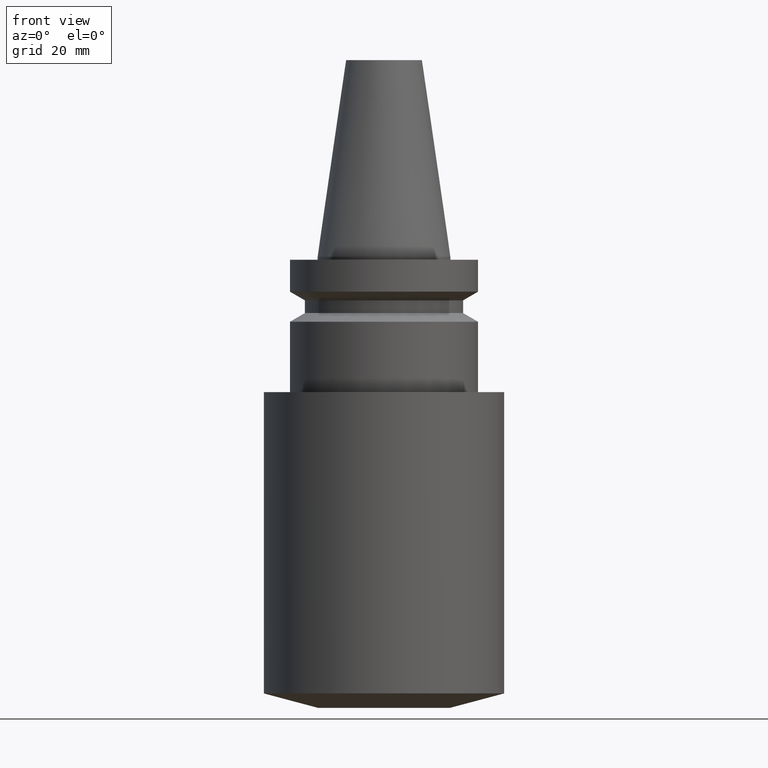
[diagram: clean part render]
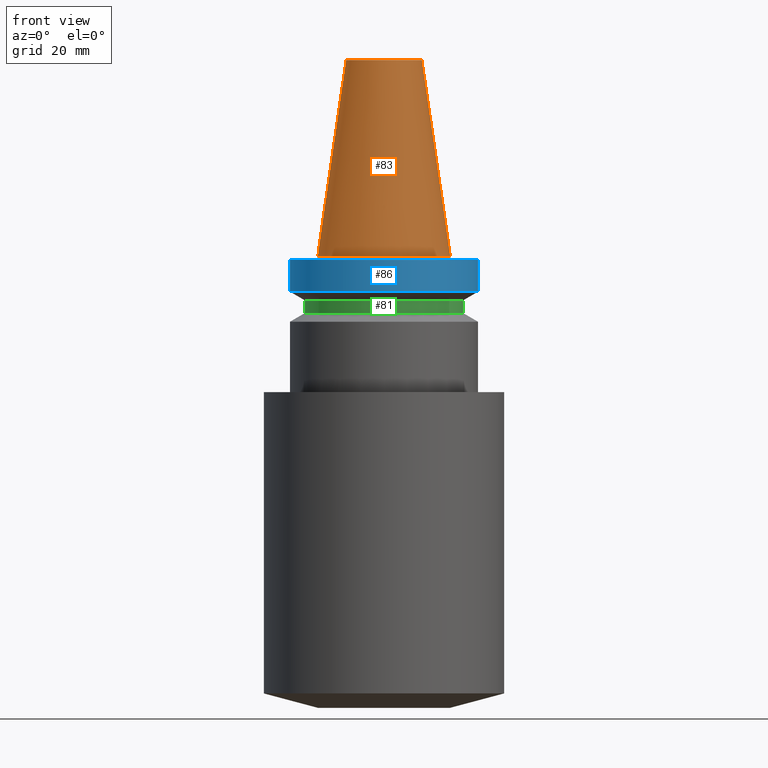
[diagram: same view with three faces highlighted in distinct colors, each labeled with its STEP entity id]
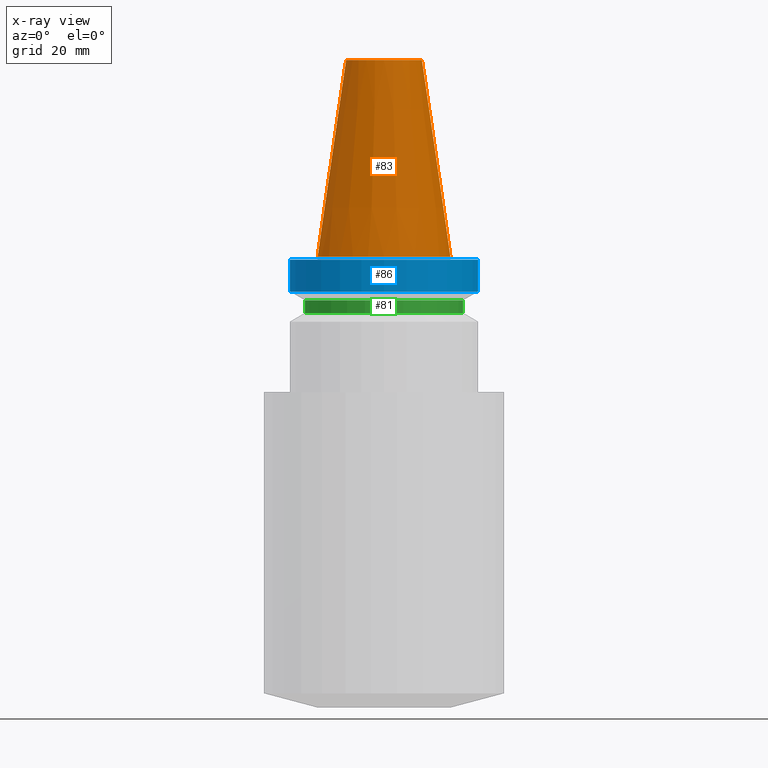
[diagram: x-ray of the same camera — body ghosted, the three highlighted faces saturated]
A machine part, front view with three faces highlighted in distinct colors.
The next image is the same camera in x-ray (body ghosted, the three faces saturated) — at least one of them is partly hidden behind the body in this view.
Their STEP definitions:

[orange] entity #83 — the highlighted conical surface has half-angle 8.297 deg.
#83=ADVANCED_FACE('',(#111,#112),#113,.T.);
#111=FACE_BOUND('',#148,.T.);
#112=FACE_BOUND('',#149,.T.);
#113=CONICAL_SURFACE('',#150,17.4562500022463,0.144812498171676);
#148=EDGE_LOOP('',(#201));
#149=EDGE_LOOP('',(#202));
#150=AXIS2_PLACEMENT_3D('',#203,#204,#205);
#201=ORIENTED_EDGE('',*,*,#234,.F.);
#202=ORIENTED_EDGE('',*,*,#233,.T.);
#203=CARTESIAN_POINT('',(-2.00229751660592E-015,-4.00459503321184E-015,32.7));
#204=DIRECTION('',(6.12323399573677E-017,1.22464679914735E-016,-1.0));
#205=DIRECTION('',(-1.23259516440783E-032,1.0,1.22464679914735E-016));
#233=EDGE_CURVE('',#252,#252,#253,.T.);
#234=EDGE_CURVE('',#254,#254,#255,.T.);
#252=VERTEX_POINT('',#276);
#253=CIRCLE('',#277,12.6875000044926);
#254=VERTEX_POINT('',#278);
#255=CIRCLE('',#279,22.225);
#276=CARTESIAN_POINT('',(-4.00459503321185E-015,12.6875000044926,65.4));
#277=AXIS2_PLACEMENT_3D('',#307,#308,#309);
#278=CARTESIAN_POINT('',(-2.7394427528964E-031,22.225,2.72177751110499E-015));
#279=AXIS2_PLACEMENT_3D('',#310,#311,#312);
#307=CARTESIAN_POINT('',(-4.00459503321185E-015,-8.00919006642369E-015,65.4));
#308=DIRECTION('',(6.12323399573677E-017,1.22464679914735E-016,-1.0));
#309=DIRECTION('',(-1.23259516440783E-032,1.0,1.22464679914735E-016));
#310=CARTESIAN_POINT('',(0.0,0.0,0.0));
#311=DIRECTION('',(6.12323399573677E-017,1.22464679914735E-016,-1.0));
#312=DIRECTION('',(-1.23259516440783E-032,1.0,1.22464679914735E-016));

[blue] entity #86 — the highlighted cylindrical surface (bore or boss wall) has radius 31.5 mm, axis along (-0, -0, 1).
#86=ADVANCED_FACE('',(#120,#121),#122,.T.);
#120=FACE_BOUND('',#157,.T.);
#121=FACE_BOUND('',#158,.T.);
#122=CYLINDRICAL_SURFACE('',#159,31.5);
#157=EDGE_LOOP('',(#216));
#158=EDGE_LOOP('',(#217));
#159=AXIS2_PLACEMENT_3D('',#218,#219,#220);
#216=ORIENTED_EDGE('',*,*,#237,.F.);
#217=ORIENTED_EDGE('',*,*,#236,.T.);
#218=CARTESIAN_POINT('',(3.85763741731416E-016,7.71527483462832E-016,-6.3));
#219=DIRECTION('',(-6.12323399573677E-017,-1.22464679914735E-016,1.0));
#220=DIRECTION('',(-1.23259516440783E-032,1.0,1.22464679914735E-016));
#236=EDGE_CURVE('',#258,#258,#259,.T.);
#237=EDGE_CURVE('',#260,#260,#261,.T.);
#258=VERTEX_POINT('',#282);
#259=CIRCLE('',#283,31.5);
#260=VERTEX_POINT('',#284);
#261=CIRCLE('',#285,31.5);
#282=CARTESIAN_POINT('',(6.12323399573673E-017,31.5,-0.999999999999996));
#283=AXIS2_PLACEMENT_3D('',#316,#317,#318);
#284=CARTESIAN_POINT('',(7.10295143505464E-016,31.5,-11.6));
#285=AXIS2_PLACEMENT_3D('',#319,#320,#321);
#316=CARTESIAN_POINT('',(6.12323399573677E-017,1.22464679914735E-016,-1.0));
#317=DIRECTION('',(6.12323399573677E-017,1.22464679914735E-016,-1.0));
#318=DIRECTION('',(-1.23259516440783E-032,1.0,1.22464679914735E-016));
#319=CARTESIAN_POINT('',(7.10295143505465E-016,1.42059028701093E-015,-11.6));
#320=DIRECTION('',(6.12323399573677E-017,1.22464679914735E-016,-1.0));
#321=DIRECTION('',(-1.23259516440783E-032,1.0,1.22464679914735E-016));

[green] entity #81 — the highlighted cylindrical surface (bore or boss wall) has radius 26.5 mm, axis along (-0, -0, 1).
#81=ADVANCED_FACE('',(#106,#107),#108,.T.);
#106=FACE_BOUND('',#143,.T.);
#107=FACE_BOUND('',#144,.T.);
#108=CYLINDRICAL_SURFACE('',#145,26.5);
#143=EDGE_LOOP('',(#192));
#144=EDGE_LOOP('',(#193));
#145=AXIS2_PLACEMENT_3D('',#194,#195,#196);
#192=ORIENTED_EDGE('',*,*,#227,.F.);
#193=ORIENTED_EDGE('',*,*,#232,.T.);
#194=CARTESIAN_POINT('',(1.0164568432923E-015,2.03291368658461E-015,-16.6));
#195=DIRECTION('',(-6.12323399573677E-017,-1.22464679914735E-016,1.0));
#196=DIRECTION('',(-1.23259516440783E-032,1.0,1.22464679914735E-016));
#227=EDGE_CURVE('',#240,#240,#241,.T.);
#232=EDGE_CURVE('',#250,#250,#251,.T.);
#240=VERTEX_POINT('',#264);
#241=CIRCLE('',#265,26.5);
#250=VERTEX_POINT('',#274);
#251=CIRCLE('',#275,26.5);
#264=CARTESIAN_POINT('',(1.14585600304355E-015,26.5,-18.71324865));
#265=AXIS2_PLACEMENT_3D('',#289,#290,#291);
#274=CARTESIAN_POINT('',(8.87057683541055E-016,26.5,-14.48675135));
#275=AXIS2_PLACEMENT_3D('',#304,#305,#306);
#289=CARTESIAN_POINT('',(1.14585600304355E-015,2.2917120060871E-015,-18.71324865));
#290=DIRECTION('',(6.12323399573677E-017,1.22464679914735E-016,-1.0));
#291=DIRECTION('',(-1.23259516440783E-032,1.0,1.22464679914735E-016));
#304=CARTESIAN_POINT('',(8.87057683541055E-016,1.77411536708211E-015,-14.48675135));
#305=DIRECTION('',(6.12323399573677E-017,1.22464679914735E-016,-1.0));
#306=DIRECTION('',(-1.23259516440783E-032,1.0,1.22464679914735E-016));